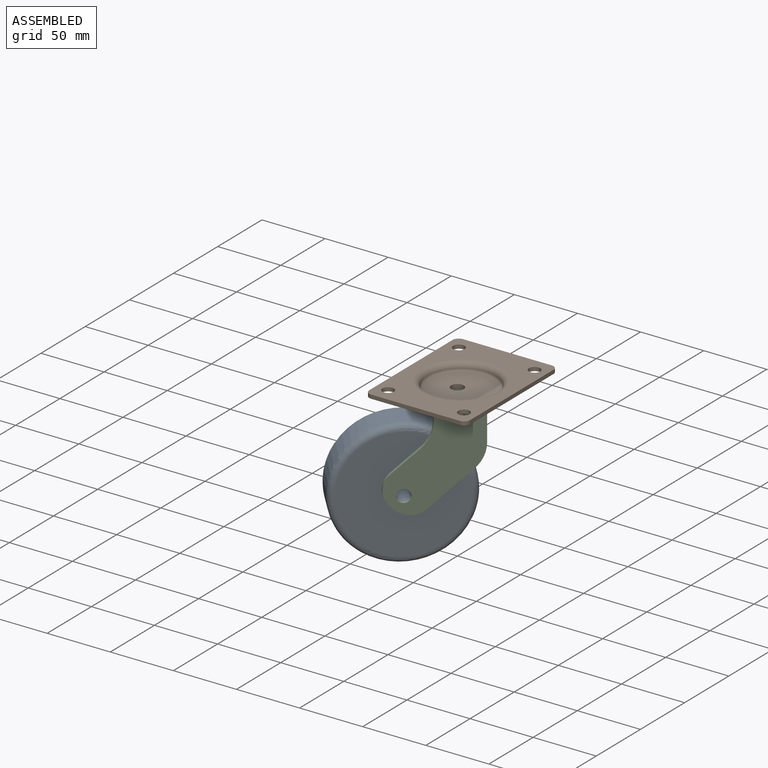
[diagram: assembled view]
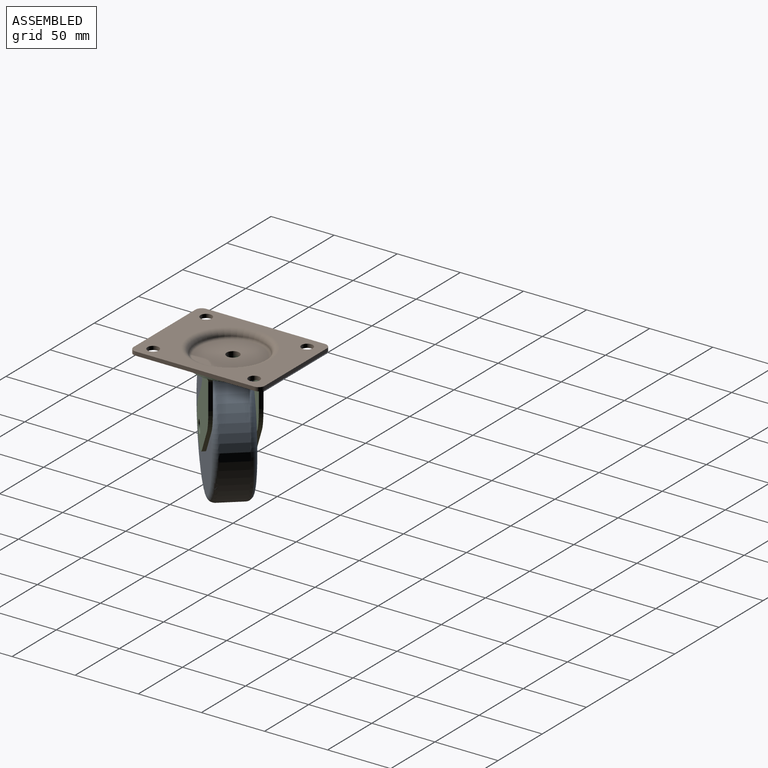
[diagram: assembled view, second angle]
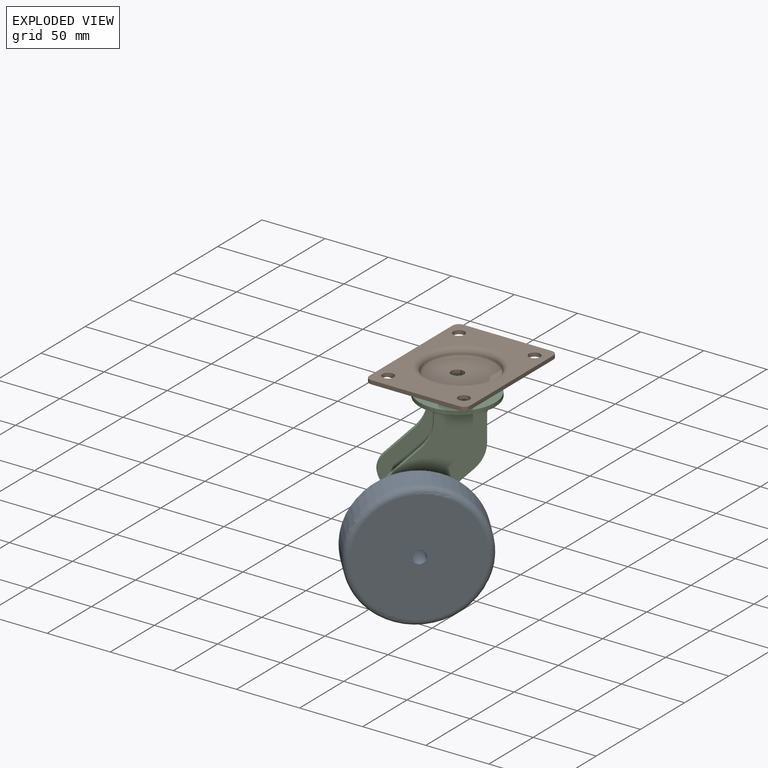
[diagram: exploded view]
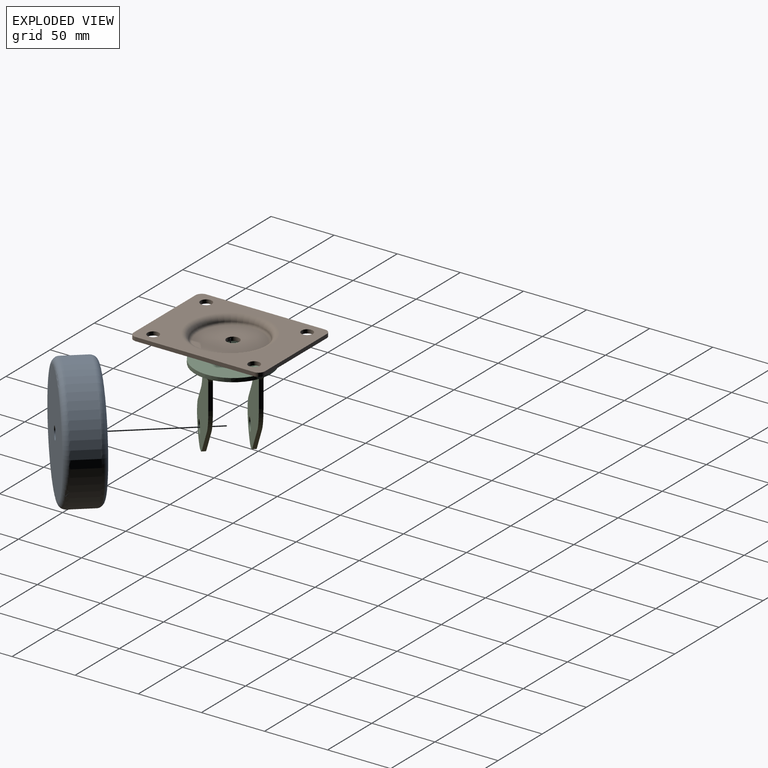
[diagram: exploded view, second angle]
ASSEMBLY  parts=3 mates=3
PART A: 6 faces, bbox 30x108.2x108.2 mm
  f0: cylinder r=50mm len=100mm, axis (-1,0,0), area 6283.2mm2, adj f4,f5
  f1: plane 90x90mm, normal (1,0,0), area 6283.2mm2, adj f3,f5
  f2: plane 90x90mm, normal (-1,0,0), area 6283.2mm2, adj f3,f4
  f3: cylinder r=5mm len=30mm, axis (1,0,0), area 942.5mm2, adj f1,f2
  f4: torus R=45mm, axis (1,0,0), area 2377.7mm2, adj f0,f2
  f5: torus R=45mm, axis (1,0,0), area 2377.7mm2, adj f0,f1
PART B: 21 faces, bbox 80x104x9 mm
  f0: cylinder r=4.5mm len=9mm, axis (0,0,-1), area 84.8mm2, adj f12,f15
  f1: cylinder r=4.5mm len=9mm, axis (0,0,-1), area 84.8mm2, adj f12,f15
  f2: cylinder r=4.5mm len=9mm, axis (0,0,-1), area 84.8mm2, adj f12,f15
  f3: cylinder r=4.5mm len=9mm, axis (0,0,-1), area 84.8mm2, adj f12,f15
  f4: plane 94x3mm, normal (-1,0,0), area 282mm2, adj f10,f11,f12,f15
  f5: plane 70x3mm, normal (0,1,0), area 210mm2, adj f9,f10,f12,f15
  f6: plane 94x3mm, normal (1,0,0), area 282mm2, adj f8,f9,f12,f15
  f7: plane 70x3mm, normal (0,-1,0), area 210mm2, adj f8,f11,f12,f15
  f8: cylinder r=5mm len=5mm, axis (0,0,-1), area 23.6mm2, adj f6,f7,f12,f15
  f9: cylinder r=5mm len=5mm, axis (0,0,1), area 23.6mm2, adj f5,f6,f12,f15
  f10: cylinder r=5mm len=5mm, axis (0,0,-1), area 23.6mm2, adj f4,f5,f12,f15
  f11: cylinder r=5mm len=5mm, axis (0,0,1), area 23.6mm2, adj f4,f7,f12,f15
  f12: plane 104x80mm, normal (0,0,-1), area 4377mm2, adj f0,f1,f2,f3,f4,f5,f6,f7
  f13: plane 50x50mm, normal (0,0,-1), area 1885mm2, adj f14,f20
  f14: torus R=25mm, axis (0,0,-1), area 1004.7mm2, adj f13,f19
  f15: plane 104x80mm, normal (0,0,1), area 4841.5mm2, adj f0,f1,f2,f3,f4,f5,f6,f7
  f16: plane 50x50mm, normal (0,0,1), area 1885mm2, adj f17,f20
  f17: torus R=25mm, axis (0,0,-1), area 470mm2, adj f16,f18
  f18: torus R=31.93mm, axis (0,0,1), area 1297.2mm2, adj f15,f17
  f19: torus R=34.17mm, axis (0,0,1), area 1150mm2, adj f12,f14
  f20: cylinder r=5mm len=10mm, axis (0,0,1), area 94.2mm2, adj f13,f16
PART C: 36 faces, bbox 60x80.9x78.9 mm
  f0: plane 60x39.69mm, normal (0,0,-1), area 1679.4mm2, adj f15,f16,f25,f27,f29,f30,f32,f35
  f1: plane 38.52x7mm, normal (0,0,-1), area 184.4mm2, adj f25,f31
  f2: plane 4.66x3mm, normal (0,1,0), area 14mm2, adj f7,f16,f17,f29
  f3: plane 4.66x3mm, normal (0,1,0), area 14mm2, adj f6,f15,f20,f30
  f4: plane 20.77x3mm, normal (0,-1,0), area 62.3mm2, adj f6,f15,f19,f32
  f5: plane 20.77x3mm, normal (0,-1,0), area 62.3mm2, adj f7,f16,f18,f27
  f6: plane 70.93x68.45mm, normal (1,0,0), area 2799.4mm2, adj f3,f4,f11,f12,f13,f19,f20,f23
  f7: plane 70.93x68.45mm, normal (-1,0,0), area 2799.4mm2, adj f2,f5,f8,f9,f10,f17,f18,f21
  f8: plane 20.02x17.8mm, normal (0,0.66,0.75), area 80.4mm2, adj f7,f16,f17,f21
  f9: cylinder r=25mm len=9.87mm, axis (-1,0,0), area 40.4mm2, adj f7,f16,f21,f22
  f10: plane 31.14x27.68mm, normal (0,-0.66,-0.75), area 125mm2, adj f7,f16,f18,f22
  f11: plane 31.14x27.68mm, normal (0,-0.66,-0.75), area 125mm2, adj f6,f15,f19,f23
  f12: cylinder r=25mm len=9.87mm, axis (-1,0,0), area 40.4mm2, adj f6,f15,f23,f24
  f13: plane 20.02x17.8mm, normal (0,0.66,0.75), area 80.4mm2, adj f6,f15,f20,f24
  f14: plane 38.52x7mm, normal (0,0,-1), area 184.4mm2, adj f25,f28
  f15: plane 75.93x73.45mm, normal (-1,0,0), area 2985.1mm2, adj f0,f3,f4,f11,f12,f13,f19,f20
  f16: plane 75.93x73.45mm, normal (1,0,0), area 2985.1mm2, adj f0,f2,f5,f8,f9,f10,f17,f18
  f17: cylinder r=25mm len=18.69mm, axis (1,0,0), area 63.3mm2, adj f2,f7,f8,f16
  f18: cylinder r=25mm len=18.69mm, axis (-1,0,0), area 63.3mm2, adj f5,f7,f10,f16
  f19: cylinder r=25mm len=18.69mm, axis (-1,0,0), area 63.3mm2, adj f4,f6,f11,f15
  f20: cylinder r=25mm len=18.69mm, axis (1,0,0), area 63.3mm2, adj f3,f6,f13,f15
  f21: cylinder r=15mm len=19.24mm, axis (-1,0,0), area 63.4mm2, adj f7,f8,f9,f16
  f22: cylinder r=15mm len=16.72mm, axis (-1,0,0), area 53.7mm2, adj f7,f9,f10,f16
  f23: cylinder r=15mm len=16.72mm, axis (-1,0,0), area 53.7mm2, adj f6,f11,f12,f15
  f24: cylinder r=15mm len=19.24mm, axis (-1,0,0), area 63.4mm2, adj f6,f12,f13,f15
  f25: cylinder r=30mm len=60mm, axis (0,0,1), area 566.9mm2, adj f0,f1,f14,f26,f27,f28,f29,f30
  f26: plane 60x60mm, normal (0,0,1), area 2748.9mm2, adj f25,f35
  f27: cylinder r=5mm len=6.46mm, axis (1,0,0), area 35.4mm2, adj f0,f5,f16,f25,f28
  f28: cylinder r=5mm len=41.92mm, axis (0,-1,0), area 298.4mm2, adj f7,f14,f25,f27,f29
  f29: cylinder r=5mm len=6.46mm, axis (1,0,0), area 35.4mm2, adj f0,f2,f16,f25,f28
  f30: cylinder r=5mm len=6.46mm, axis (1,0,0), area 35.4mm2, adj f0,f3,f15,f25,f31
  f31: cylinder r=5mm len=41.92mm, axis (0,1,0), area 298.4mm2, adj f1,f6,f25,f30,f32
  f32: cylinder r=5mm len=6.46mm, axis (1,0,0), area 35.4mm2, adj f0,f4,f15,f25,f31
  f33: cylinder r=5mm len=10mm, axis (-1,0,0), area 94.2mm2, adj f7,f16
  f34: cylinder r=5mm len=10mm, axis (-1,0,0), area 94.2mm2, adj f6,f15
  f35: cylinder r=5mm len=10mm, axis (0,0,1), area 94.2mm2, adj f0,f26
PLACE A rot(axis=(-0.07,-0.16,0.98),131.8deg) t=(-17.94,-35.58,-67.85)mm
PLACE B t=(3.17,0,3)mm fixed
PLACE C rot(axis=(0,0,1),131.1deg) t=(-1.34,-25.07,-43)mm
MATE revolute C.f33 <-> A.f3  axis (0.66,-0.75,0) through (-37.68,-12.99,-67.85)mm
MATE revolute C.f25 <-> B.f20  axis (0,0,1) through (0,0,-3)mm
MATE pin_slot A.f3 <-> C.f33  axis (-0.66,0.75,0) through (-37.68,-12.99,-67.85)mm
